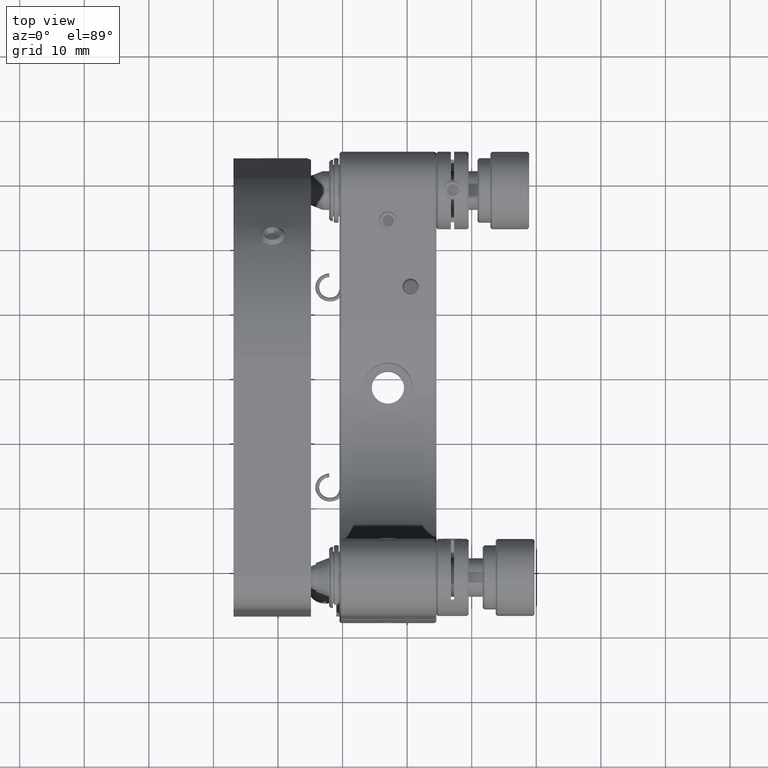
[diagram: clean part render]
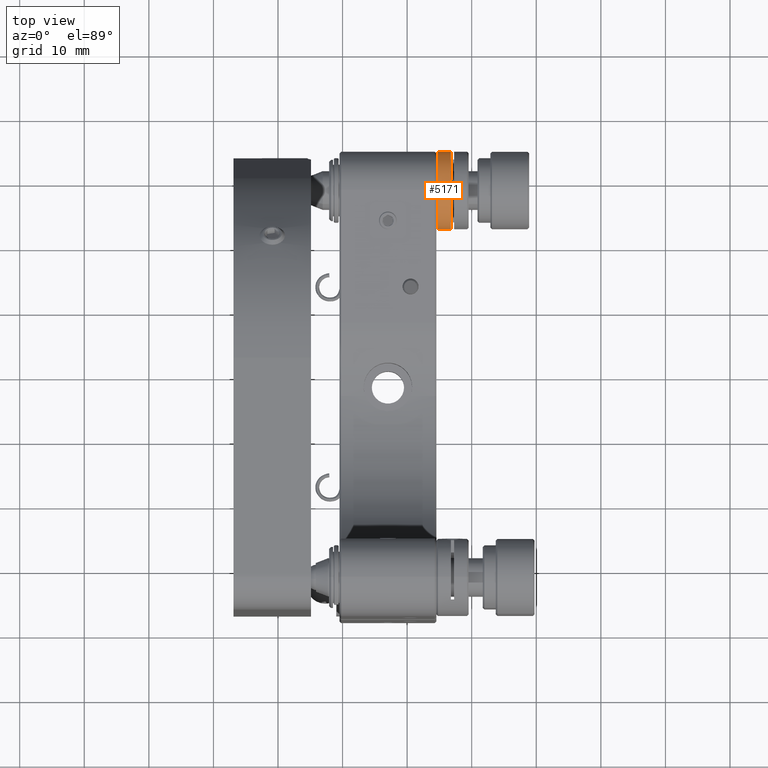
[diagram: same view with one face highlighted and labeled with its STEP entity id]
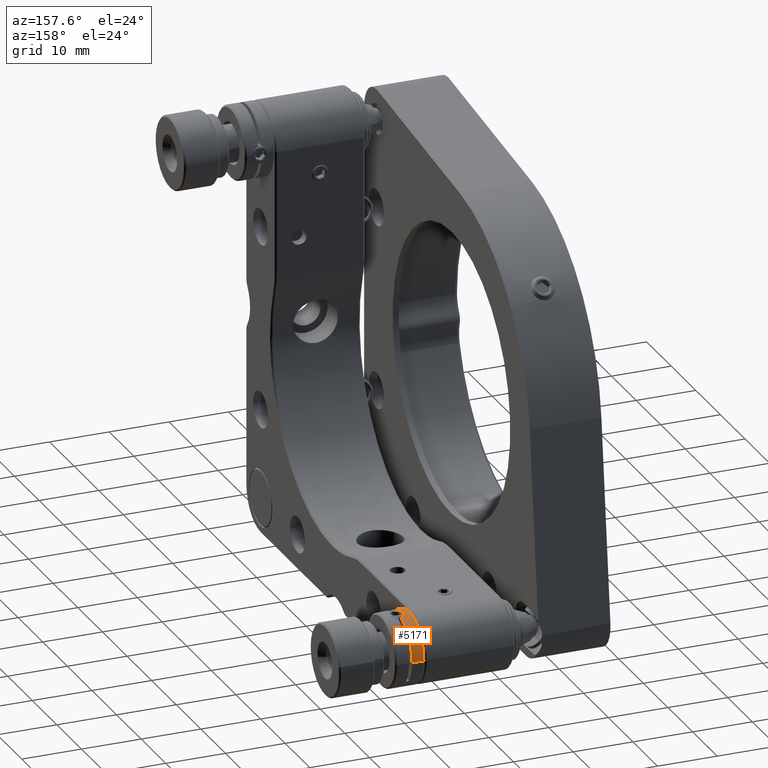
[diagram: same view with one face highlighted and labeled with its STEP entity id]
A machine part, top view. The second image highlights one B-rep face of the part: STEP entity #5171.
A second angle (auxiliary view) of the same face is appended — the face is thin or edge-on in the first view.
In plain terms, the highlighted cylindrical surface (partial cylindrical patch) has radius 6 mm, axis along (1, 0, 0).
Its self-contained STEP definition (entity closure, byte-faithful):
#9 = CARTESIAN_POINT ( 'NONE',  ( -6.000000000000000888, -1.067275349853503943E-14, -2.750000000000005773 ) ) ;
#35 = CARTESIAN_POINT ( 'NONE',  ( -1.224744871391569845, 5.873670062235373912, -2.750000000000005773 ) ) ;
#151 = AXIS2_PLACEMENT_3D ( 'NONE', #11995, #11905, #6006 ) ;
#367 = CIRCLE ( 'NONE', #17969, 6.000000000000024869 ) ;
#946 = ORIENTED_EDGE ( 'NONE', *, *, #18184, .T. ) ;
#1215 = EDGE_LOOP ( 'NONE', ( #946, #8851, #5228, #18687, #16309, #7760 ) ) ;
#1232 = CARTESIAN_POINT ( 'NONE',  ( 1.143123798528064228, 5.890573329318485207, -3.025320533941228351 ) ) ;
#2422 = CARTESIAN_POINT ( 'NONE',  ( 0.5544101060678068293, 5.975839072312945532, -3.629315072507491191 ) ) ;
#2699 = CARTESIAN_POINT ( 'NONE',  ( 1.196205021719754180, 5.879621032266957315, -2.889816138063010964 ) ) ;
#2790 = CARTESIAN_POINT ( 'NONE',  ( 6.000000000000039080, -9.409140133698201680E-15, -21.59999999999996945 ) ) ;
#3037 = CARTESIAN_POINT ( 'NONE',  ( 6.000000000000024869, 9.992007221626408864E-16, -4.749999999999966249 ) ) ;
#3971 = EDGE_CURVE ( 'NONE', #4117, #16341, #6029, .T. ) ;
#4062 = B_SPLINE_CURVE_WITH_KNOTS ( 'NONE', 3,
 ( #10188, #2699, #1232, #17863, #7265, #5866, #2422, #11671, #9904, #4299, #11859, #19236, #5589, #5489, #16315, #10006, #11587, #8843 ),
 .UNSPECIFIED., .F., .F.,
 ( 4, 2, 2, 2, 2, 2, 2, 2, 4 ),
 ( 0.002209803482108129661, 0.002637059419285216547, 0.003064315356462303432, 0.003491571293639390318, 0.003918827230816477637, 0.004346083167993564089, 0.004773339105170651409, 0.005200595042347738728, 0.005627850979524825180 ),
 .UNSPECIFIED. ) ;
#4117 = VERTEX_POINT ( 'NONE', #6234 ) ;
#4299 = CARTESIAN_POINT ( 'NONE',  ( -0.1425344271876270996, 5.999999883730122718, -3.749999441904633191 ) ) ;
#4677 = VERTEX_POINT ( 'NONE', #3037 ) ;
#5129 = VERTEX_POINT ( 'NONE', #12170 ) ;
#5171 = ADVANCED_FACE ( 'NONE', ( #5984 ), #16700, .T. ) ;
#5228 = ORIENTED_EDGE ( 'NONE', *, *, #6650, .T. ) ;
#5424 = EDGE_CURVE ( 'NONE', #5129, #6808, #4062, .T. ) ;
#5489 = CARTESIAN_POINT ( 'NONE',  ( -0.9008969858702310374, 5.933012926968524781, -3.378053917621538726 ) ) ;
#5589 = CARTESIAN_POINT ( 'NONE',  ( -0.6814007432138025067, 5.962210227581159927, -3.557490940173143823 ) ) ;
#5866 = CARTESIAN_POINT ( 'NONE',  ( 0.6811327387031468339, 5.962242525162604778, -3.557676267271726811 ) ) ;
#5984 = FACE_OUTER_BOUND ( 'NONE', #1215, .T. ) ;
#6006 = DIRECTION ( 'NONE',  ( 1.000000000000000000, 1.665334536937727908E-16, 0.0000000000000000000 ) ) ;
#6029 = LINE ( 'NONE', #11735, #6433 ) ;
#6146 = AXIS2_PLACEMENT_3D ( 'NONE', #12272, #18268, #6377 ) ;
#6234 = CARTESIAN_POINT ( 'NONE',  ( -6.000000000000000888, -1.067275349853503943E-14, -4.749999999999966249 ) ) ;
#6377 = DIRECTION ( 'NONE',  ( 1.000000000000000000, 1.665334536937726922E-16, 0.0000000000000000000 ) ) ;
#6433 = VECTOR ( 'NONE', #18029, 1000.000000000000000 ) ;
#6650 = EDGE_CURVE ( 'NONE', #16341, #6808, #14946, .T. ) ;
#6808 = VERTEX_POINT ( 'NONE', #35 ) ;
#7265 = CARTESIAN_POINT ( 'NONE',  ( 0.9008085455376915185, 5.933028038099674717, -3.378159927558397779 ) ) ;
#7423 = DIRECTION ( 'NONE',  ( -6.647351053116335564E-31, 9.130123557772672032E-17, -1.000000000000000000 ) ) ;
#7760 = ORIENTED_EDGE ( 'NONE', *, *, #9047, .F. ) ;
#8364 = AXIS2_PLACEMENT_3D ( 'NONE', #17948, #15020, #14910 ) ;
#8840 = DIRECTION ( 'NONE',  ( 6.650245208388999576E-31, 4.190823558986626092E-31, 1.000000000000000000 ) ) ;
#8843 = CARTESIAN_POINT ( 'NONE',  ( -1.224744871391569845, 5.873670062235373912, -2.750000000000005773 ) ) ;
#8851 = ORIENTED_EDGE ( 'NONE', *, *, #3971, .T. ) ;
#9047 = EDGE_CURVE ( 'NONE', #4677, #12523, #16312, .T. ) ;
#9904 = CARTESIAN_POINT ( 'NONE',  ( 0.1425246382377832743, 6.000000116265867156, -3.750000558076191481 ) ) ;
#10006 = CARTESIAN_POINT ( 'NONE',  ( -1.143029911951396027, 5.890589213070005492, -3.025438627587166973 ) ) ;
#10188 = CARTESIAN_POINT ( 'NONE',  ( 1.224744871393290691, 5.873670062235082590, -2.750000000001227018 ) ) ;
#11522 = CIRCLE ( 'NONE', #151, 6.000000000000024869 ) ;
#11587 = CARTESIAN_POINT ( 'NONE',  ( -1.196296320991376394, 5.879601995052828656, -2.889368864804688464 ) ) ;
#11671 = CARTESIAN_POINT ( 'NONE',  ( 0.2865693756700073425, 5.994656051586298773, -3.724990241443097538 ) ) ;
#11735 = CARTESIAN_POINT ( 'NONE',  ( -6.000000000000011546, -1.067275349853506783E-14, -21.59999999999996945 ) ) ;
#11859 = CARTESIAN_POINT ( 'NONE',  ( -0.2866465520910121412, 5.994652887876424252, -3.724975557607660193 ) ) ;
#11905 = DIRECTION ( 'NONE',  ( 6.280466659066648541E-31, 4.683861624749757595E-31, 1.000000000000000000 ) ) ;
#11922 = CARTESIAN_POINT ( 'NONE',  ( 0.0000000000000000000, 0.0000000000000000000, -2.750000000000005773 ) ) ;
#11995 = CARTESIAN_POINT ( 'NONE',  ( 0.0000000000000000000, 0.0000000000000000000, -4.749999999999966249 ) ) ;
#12170 = CARTESIAN_POINT ( 'NONE',  ( 1.224744871393290691, 5.873670062235082590, -2.750000000001227018 ) ) ;
#12272 = CARTESIAN_POINT ( 'NONE',  ( 1.387778780781445676E-14, -1.040834085586084257E-14, -21.59999999999996945 ) ) ;
#12523 = VERTEX_POINT ( 'NONE', #18661 ) ;
#14910 = DIRECTION ( 'NONE',  ( 1.665334536937728155E-16, -1.000000000000000000, -7.228014483236666234E-17 ) ) ;
#14946 = CIRCLE ( 'NONE', #8364, 6.000000000000024869 ) ;
#15020 = DIRECTION ( 'NONE',  ( -6.647351053116335564E-31, 9.130123557772672032E-17, -1.000000000000000000 ) ) ;
#15335 = VECTOR ( 'NONE', #8840, 1000.000000000000000 ) ;
#16309 = ORIENTED_EDGE ( 'NONE', *, *, #16631, .T. ) ;
#16312 = LINE ( 'NONE', #2790, #15335 ) ;
#16315 = CARTESIAN_POINT ( 'NONE',  ( -0.9963058750883826420, 5.917172742113981698, -3.268100080875322444 ) ) ;
#16341 = VERTEX_POINT ( 'NONE', #9 ) ;
#16631 = EDGE_CURVE ( 'NONE', #5129, #12523, #367, .T. ) ;
#16700 = CYLINDRICAL_SURFACE ( 'NONE', #6146, 6.000000000000024869 ) ;
#17863 = CARTESIAN_POINT ( 'NONE',  ( 0.9960367417504270016, 5.917220375811827360, -3.268507964320944037 ) ) ;
#17925 = DIRECTION ( 'NONE',  ( 1.665334536937728155E-16, -1.000000000000000000, -7.228014483236666234E-17 ) ) ;
#17948 = CARTESIAN_POINT ( 'NONE',  ( 0.0000000000000000000, 0.0000000000000000000, -2.750000000000005773 ) ) ;
#17969 = AXIS2_PLACEMENT_3D ( 'NONE', #11922, #7423, #17925 ) ;
#18029 = DIRECTION ( 'NONE',  ( 6.650245208388999576E-31, 4.190823558986626092E-31, 1.000000000000000000 ) ) ;
#18184 = EDGE_CURVE ( 'NONE', #4677, #4117, #11522, .T. ) ;
#18268 = DIRECTION ( 'NONE',  ( 6.650245208388999576E-31, 4.190823558986626092E-31, 1.000000000000000000 ) ) ;
#18661 = CARTESIAN_POINT ( 'NONE',  ( 6.000000000000000888, -9.409140133698200102E-15, -2.750000000000005773 ) ) ;
#18687 = ORIENTED_EDGE ( 'NONE', *, *, #5424, .F. ) ;
#19236 = CARTESIAN_POINT ( 'NONE',  ( -0.5545338341979596519, 5.975828119907776070, -3.629257981725864557 ) ) ;